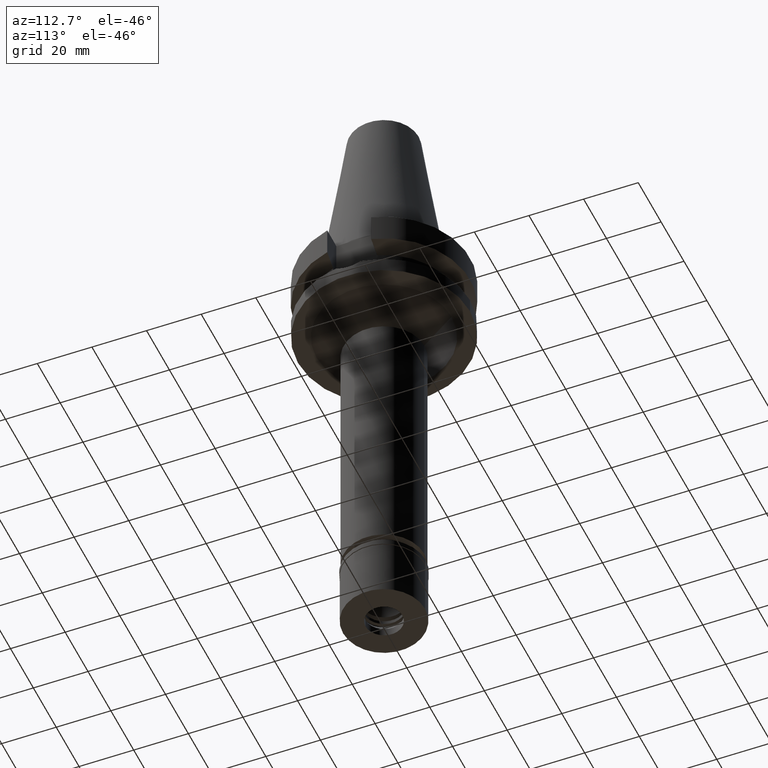
[diagram: clean part render]
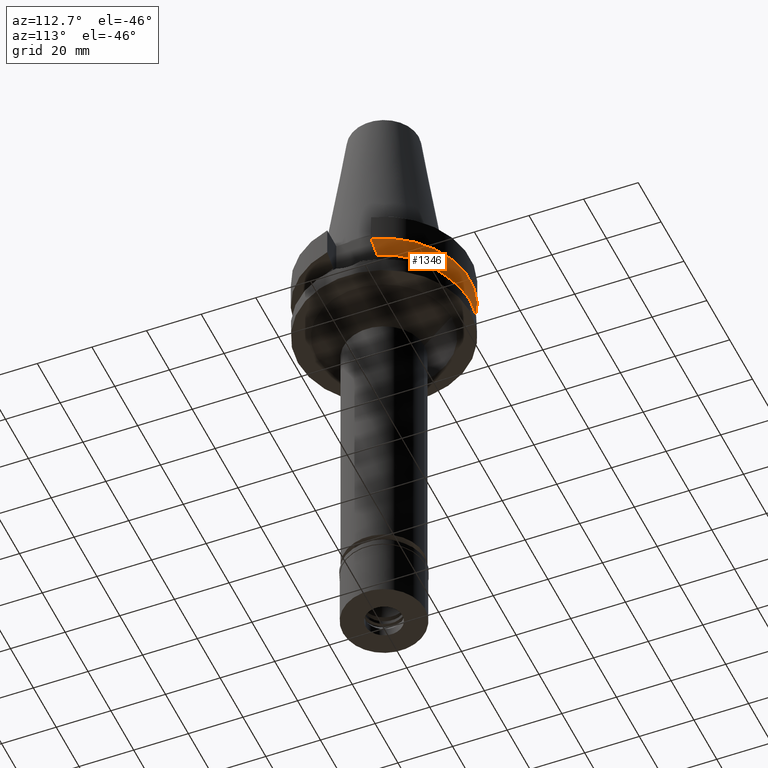
[diagram: same view with one face highlighted and labeled with its STEP entity id]
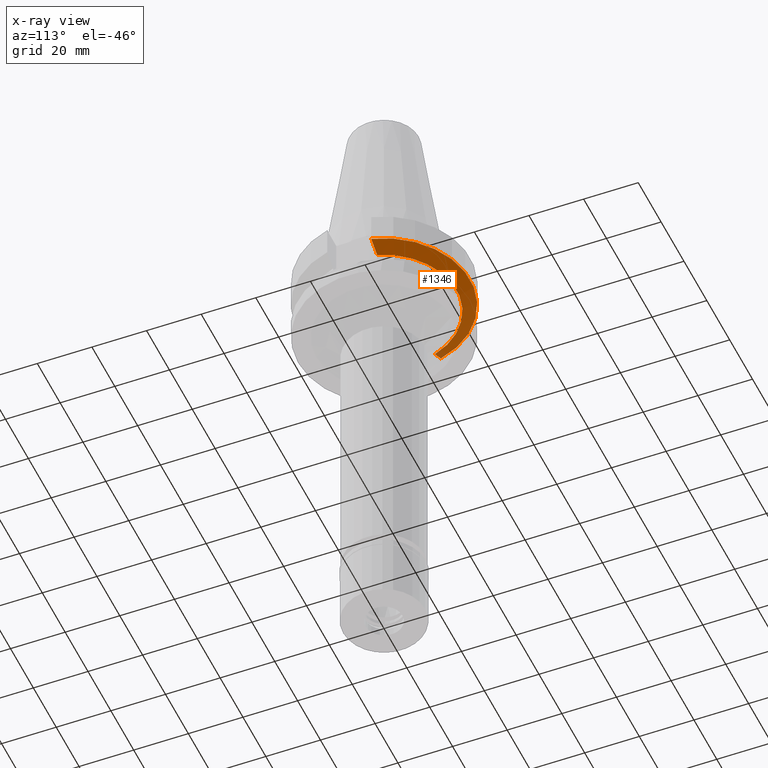
[diagram: x-ray of the same camera — body ghosted, the highlighted face saturated]
A machine part, auxiliary view. The second image highlights one B-rep face of the part: STEP entity #1346.
The next image is the same camera in x-ray: the body ghosted, the highlighted face saturated — about 2% of this face is hidden behind the body in this view.
In plain terms, the highlighted conical surface has half-angle 60 deg.
Its self-contained STEP definition (entity closure, byte-faithful):
#34 = CARTESIAN_POINT ( 'NONE',  ( 0.0000000000000000000, 0.0000000000000000000, -11.56550565266999975 ) ) ;
#53 = FACE_OUTER_BOUND ( 'NONE', #498, .T. ) ;
#73 = AXIS2_PLACEMENT_3D ( 'NONE', #2934, #781, #1199 ) ;
#128 = CARTESIAN_POINT ( 'NONE',  ( 25.24772413102000002, 8.049995416383998403, -14.45229202342000008 ) ) ;
#169 = CARTESIAN_POINT ( 'NONE',  ( 30.45402291365999758, 8.049999277899999583, -11.56551215646999964 ) ) ;
#288 = DIRECTION ( 'NONE',  ( 0.0000000000000000000, 0.0000000000000000000, 1.000000000000000000 ) ) ;
#498 = EDGE_LOOP ( 'NONE', ( #1846, #1475, #2251, #1557 ) ) ;
#561 = B_SPLINE_CURVE_WITH_KNOTS ( 'NONE', 3,
 ( #1555, #565, #1736, #128 ),
 .UNSPECIFIED., .F., .F.,
 ( 4, 4 ),
 ( 0.0000000000000000000, 1.000000000000000000 ),
 .UNSPECIFIED. ) ;
#565 = CARTESIAN_POINT ( 'NONE',  ( 28.57292329962917066, 8.049998556738838573, -12.61549605020579179 ) ) ;
#638 = VERTEX_POINT ( 'NONE', #169 ) ;
#668 = VERTEX_POINT ( 'NONE', #2552 ) ;
#684 = EDGE_CURVE ( 'NONE', #668, #2517, #2657, .T. ) ;
#731 = AXIS2_PLACEMENT_3D ( 'NONE', #1185, #2136, #3111 ) ;
#781 = DIRECTION ( 'NONE',  ( 0.0000000000000000000, 0.0000000000000000000, 1.000000000000000000 ) ) ;
#848 = CARTESIAN_POINT ( 'NONE',  ( -26.83758148555831013, 8.050003176367953373, -13.57772735096163785 ) ) ;
#929 = CARTESIAN_POINT ( 'NONE',  ( -30.45402162752999686, 8.050004143464001061, -11.56546833011000075 ) ) ;
#1087 = CARTESIAN_POINT ( 'NONE',  ( -25.24772216375000156, 8.050001586471001502, -14.45224487658000001 ) ) ;
#1128 = AXIS2_PLACEMENT_3D ( 'NONE', #34, #288, #1468 ) ;
#1185 = CARTESIAN_POINT ( 'NONE',  ( 0.0000000000000000000, 0.0000000000000000000, -14.45225699861000024 ) ) ;
#1199 = DIRECTION ( 'NONE',  ( 0.0000000000000000000, 1.000000000000000000, 0.0000000000000000000 ) ) ;
#1346 = ADVANCED_FACE ( 'NONE', ( #53 ), #2069, .T. ) ;
#1468 = DIRECTION ( 'NONE',  ( 0.0000000000000000000, 1.000000000000000000, 0.0000000000000000000 ) ) ;
#1475 = ORIENTED_EDGE ( 'NONE', *, *, #1486, .T. ) ;
#1486 = EDGE_CURVE ( 'NONE', #638, #3117, #561, .T. ) ;
#1555 = CARTESIAN_POINT ( 'NONE',  ( 30.45402291365999758, 8.049999277899999583, -11.56551215646999964 ) ) ;
#1557 = ORIENTED_EDGE ( 'NONE', *, *, #684, .T. ) ;
#1613 = CIRCLE ( 'NONE', #1128, 31.50000000000000000 ) ;
#1736 = CARTESIAN_POINT ( 'NONE',  ( 26.83754616961808281, 8.049990822617081321, -13.57774887560575827 ) ) ;
#1785 = CARTESIAN_POINT ( 'NONE',  ( -28.57295871603888315, 8.050008281890470130, -12.61547480226904838 ) ) ;
#1803 = EDGE_CURVE ( 'NONE', #638, #2517, #1613, .T. ) ;
#1846 = ORIENTED_EDGE ( 'NONE', *, *, #1803, .F. ) ;
#1890 = EDGE_CURVE ( 'NONE', #668, #3117, #2230, .T. ) ;
#2000 = CARTESIAN_POINT ( 'NONE',  ( 25.24772413102000002, 8.049995416383998403, -14.45229202342000008 ) ) ;
#2069 = CONICAL_SURFACE ( 'NONE', #73, 29.00000000000000000, 1.047197551196400456 ) ;
#2136 = DIRECTION ( 'NONE',  ( 0.0000000000000000000, 0.0000000000000000000, -1.000000000000000000 ) ) ;
#2230 = CIRCLE ( 'NONE', #731, 26.50000000000000711 ) ;
#2251 = ORIENTED_EDGE ( 'NONE', *, *, #1890, .F. ) ;
#2517 = VERTEX_POINT ( 'NONE', #2862 ) ;
#2552 = CARTESIAN_POINT ( 'NONE',  ( -25.24772216375000156, 8.050001586471001502, -14.45224487658000001 ) ) ;
#2657 = B_SPLINE_CURVE_WITH_KNOTS ( 'NONE', 3,
 ( #1087, #848, #1785, #929 ),
 .UNSPECIFIED., .F., .F.,
 ( 4, 4 ),
 ( 0.0000000000000000000, 1.000000000000000000 ),
 .UNSPECIFIED. ) ;
#2862 = CARTESIAN_POINT ( 'NONE',  ( -30.45402162752999686, 8.050004143464001061, -11.56546833011000075 ) ) ;
#2934 = CARTESIAN_POINT ( 'NONE',  ( 0.0000000000000000000, 0.0000000000000000000, -13.00888132564000088 ) ) ;
#3111 = DIRECTION ( 'NONE',  ( -0.9527442516822307583, 0.3037735849057093818, 0.0000000000000000000 ) ) ;
#3117 = VERTEX_POINT ( 'NONE', #2000 ) ;